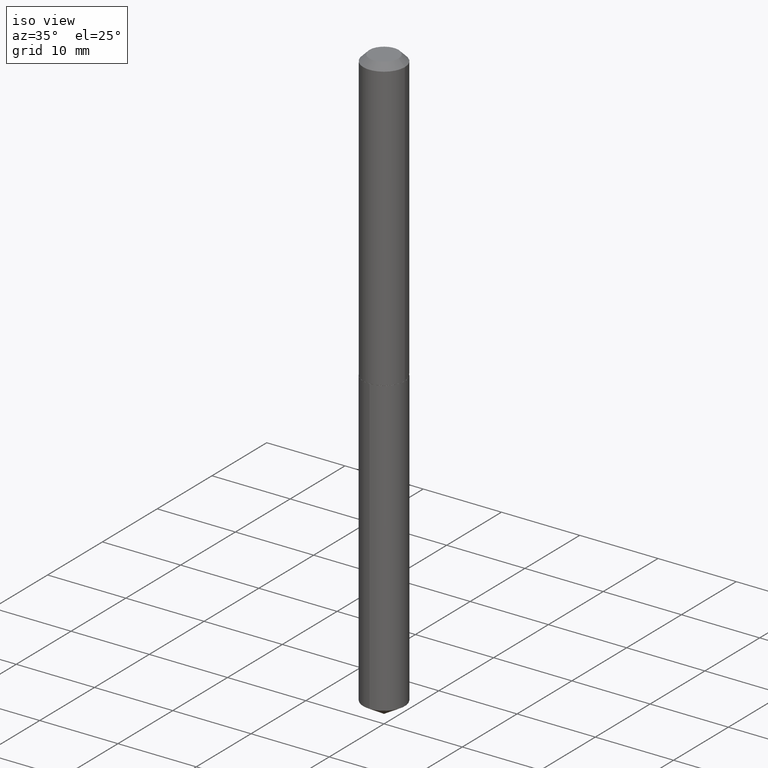
[diagram: clean part render]
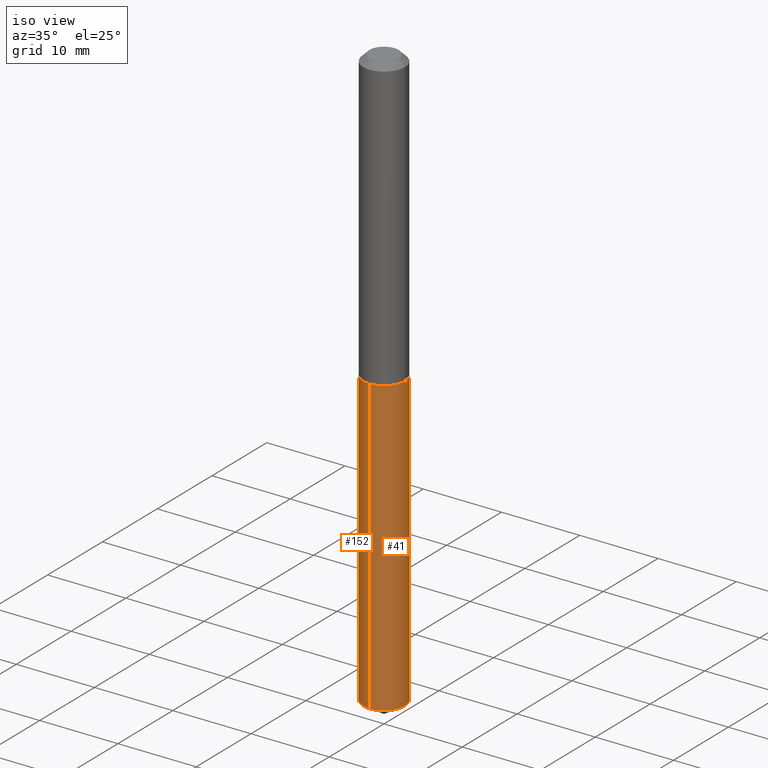
[diagram: same view with one multi-face feature highlighted, each face labeled with its STEP entity id]
A machine part, iso view. The highlighted faces form ONE feature: a constant-radius fillet chain: 2 tangent blend faces with common blend radius 2.6543 mm. The faces share edges in the B-rep.
Their STEP definitions:
[1] entity #41 (Cylinder):
#1 = CARTESIAN_POINT ( 'NONE',  ( 3.567938988224114792E-29, -5.094071273372150151E-15, -1.459000000000000297 ) ) ;
#5 = AXIS2_PLACEMENT_3D ( 'NONE', #40, #342, #97 ) ;
#17 = CARTESIAN_POINT ( 'NONE',  ( 3.567938988224114792E-29, -5.094071273372150151E-15, -1.459000000000000297 ) ) ;
#37 = AXIS2_PLACEMENT_3D ( 'NONE', #17, #116, #85 ) ;
#40 = CARTESIAN_POINT ( 'NONE',  ( 7.177397751572739020E-29, -1.026303006933405214E-14, -2.937210065311621321 ) ) ;
#41 = ADVANCED_FACE ( 'NONE', ( #361 ), #333, .T. ) ;
#50 = ORIENTED_EDGE ( 'NONE', *, *, #123, .F. ) ;
#57 = LINE ( 'NONE', #336, #212 ) ;
#60 = EDGE_CURVE ( 'NONE', #256, #228, #218, .T. ) ;
#84 = DIRECTION ( 'NONE',  ( -2.441776610814590740E-29, 3.496768772760476787E-15, 1.000000000000000000 ) ) ;
#85 = DIRECTION ( 'NONE',  ( -6.982962677686266711E-15, -1.000000000000000000, 2.614208606377285850E-15 ) ) ;
#97 = DIRECTION ( 'NONE',  ( -6.982962677686266711E-15, -1.000000000000000000, 5.228417212754571700E-15 ) ) ;
#111 = ORIENTED_EDGE ( 'NONE', *, *, #60, .F. ) ;
#113 = DIRECTION ( 'NONE',  ( -6.982962677686266711E-15, -1.000000000000000000, 2.614208606377285850E-15 ) ) ;
#116 = DIRECTION ( 'NONE',  ( -2.441776610814590740E-29, 3.496768772760477182E-15, 1.000000000000000000 ) ) ;
#123 = EDGE_CURVE ( 'NONE', #136, #256, #57, .T. ) ;
#130 = CARTESIAN_POINT ( 'NONE',  ( 7.425171588693764498E-16, 0.1044999999999897400, -2.937210065311621765 ) ) ;
#136 = VERTEX_POINT ( 'NONE', #177 ) ;
#153 = CARTESIAN_POINT ( 'NONE',  ( 7.425171588693401622E-16, 0.1044999999999949025, -1.459000000000000519 ) ) ;
#157 = CIRCLE ( 'NONE', #5, 0.1044999999999999818 ) ;
#173 = DIRECTION ( 'NONE',  ( -2.441776610814590740E-29, 3.496768772760477182E-15, 1.000000000000000000 ) ) ;
#177 = CARTESIAN_POINT ( 'NONE',  ( -7.297195998181429350E-16, -0.1045000000000102514, -2.937210065311620433 ) ) ;
#192 = ORIENTED_EDGE ( 'NONE', *, *, #322, .T. ) ;
#205 = CARTESIAN_POINT ( 'NONE',  ( -7.297195998181791240E-16, -0.1045000000000050749, -1.458999999999999853 ) ) ;
#212 = VECTOR ( 'NONE', #84, 39.37007874015748143 ) ;
#218 = CIRCLE ( 'NONE', #305, 0.1044999999999999818 ) ;
#225 = VECTOR ( 'NONE', #279, 39.37007874015748143 ) ;
#228 = VERTEX_POINT ( 'NONE', #360 ) ;
#231 = ORIENTED_EDGE ( 'NONE', *, *, #370, .T. ) ;
#256 = VERTEX_POINT ( 'NONE', #205 ) ;
#279 = DIRECTION ( 'NONE',  ( -2.441776610814590740E-29, 3.496768772760476787E-15, 1.000000000000000000 ) ) ;
#305 = AXIS2_PLACEMENT_3D ( 'NONE', #1, #173, #113 ) ;
#309 = LINE ( 'NONE', #153, #225 ) ;
#322 = EDGE_CURVE ( 'NONE', #136, #387, #157, .T. ) ;
#333 = CYLINDRICAL_SURFACE ( 'NONE', #37, 0.1044999999999999818 ) ;
#336 = CARTESIAN_POINT ( 'NONE',  ( -7.297195998181791240E-16, -0.1045000000000050749, -1.458999999999999853 ) ) ;
#342 = DIRECTION ( 'NONE',  ( -2.441776610814590740E-29, 3.496768772760477182E-15, 1.000000000000000000 ) ) ;
#360 = CARTESIAN_POINT ( 'NONE',  ( 7.425171588693765484E-16, 0.1044999999999949025, -1.459000000000000519 ) ) ;
#361 = FACE_OUTER_BOUND ( 'NONE', #375, .T. ) ;
#370 = EDGE_CURVE ( 'NONE', #387, #228, #309, .T. ) ;
#375 = EDGE_LOOP ( 'NONE', ( #192, #231, #111, #50 ) ) ;
#387 = VERTEX_POINT ( 'NONE', #130 ) ;
[2] entity #152 (Cylinder):
#14 = EDGE_LOOP ( 'NONE', ( #206, #106, #159, #32 ) ) ;
#32 = ORIENTED_EDGE ( 'NONE', *, *, #34, .F. ) ;
#34 = EDGE_CURVE ( 'NONE', #228, #256, #178, .T. ) ;
#44 = AXIS2_PLACEMENT_3D ( 'NONE', #200, #242, #366 ) ;
#55 = FACE_OUTER_BOUND ( 'NONE', #14, .T. ) ;
#57 = LINE ( 'NONE', #336, #212 ) ;
#84 = DIRECTION ( 'NONE',  ( -2.441776610814590740E-29, 3.496768772760476787E-15, 1.000000000000000000 ) ) ;
#92 = DIRECTION ( 'NONE',  ( -6.982962677686266711E-15, -1.000000000000000000, 5.228417212754571700E-15 ) ) ;
#105 = AXIS2_PLACEMENT_3D ( 'NONE', #241, #213, #272 ) ;
#106 = ORIENTED_EDGE ( 'NONE', *, *, #314, .T. ) ;
#122 = CYLINDRICAL_SURFACE ( 'NONE', #105, 0.1044999999999999818 ) ;
#123 = EDGE_CURVE ( 'NONE', #136, #256, #57, .T. ) ;
#130 = CARTESIAN_POINT ( 'NONE',  ( 7.425171588693764498E-16, 0.1044999999999897400, -2.937210065311621765 ) ) ;
#134 = CIRCLE ( 'NONE', #250, 0.1044999999999999818 ) ;
#136 = VERTEX_POINT ( 'NONE', #177 ) ;
#152 = ADVANCED_FACE ( 'NONE', ( #55 ), #122, .T. ) ;
#153 = CARTESIAN_POINT ( 'NONE',  ( 7.425171588693401622E-16, 0.1044999999999949025, -1.459000000000000519 ) ) ;
#159 = ORIENTED_EDGE ( 'NONE', *, *, #123, .T. ) ;
#177 = CARTESIAN_POINT ( 'NONE',  ( -7.297195998181429350E-16, -0.1045000000000102514, -2.937210065311620433 ) ) ;
#178 = CIRCLE ( 'NONE', #44, 0.1044999999999999818 ) ;
#200 = CARTESIAN_POINT ( 'NONE',  ( 3.567938988224114792E-29, -5.094071273372150151E-15, -1.459000000000000297 ) ) ;
#205 = CARTESIAN_POINT ( 'NONE',  ( -7.297195998181791240E-16, -0.1045000000000050749, -1.458999999999999853 ) ) ;
#206 = ORIENTED_EDGE ( 'NONE', *, *, #370, .F. ) ;
#212 = VECTOR ( 'NONE', #84, 39.37007874015748143 ) ;
#213 = DIRECTION ( 'NONE',  ( -2.441776610814590740E-29, 3.496768772760477182E-15, 1.000000000000000000 ) ) ;
#225 = VECTOR ( 'NONE', #279, 39.37007874015748143 ) ;
#228 = VERTEX_POINT ( 'NONE', #360 ) ;
#241 = CARTESIAN_POINT ( 'NONE',  ( 3.567938988224114792E-29, -5.094071273372150151E-15, -1.459000000000000297 ) ) ;
#242 = DIRECTION ( 'NONE',  ( -2.441776610814590740E-29, 3.496768772760477182E-15, 1.000000000000000000 ) ) ;
#250 = AXIS2_PLACEMENT_3D ( 'NONE', #349, #345, #92 ) ;
#256 = VERTEX_POINT ( 'NONE', #205 ) ;
#272 = DIRECTION ( 'NONE',  ( -6.982962677686266711E-15, -1.000000000000000000, 2.614208606377285850E-15 ) ) ;
#279 = DIRECTION ( 'NONE',  ( -2.441776610814590740E-29, 3.496768772760476787E-15, 1.000000000000000000 ) ) ;
#309 = LINE ( 'NONE', #153, #225 ) ;
#314 = EDGE_CURVE ( 'NONE', #387, #136, #134, .T. ) ;
#336 = CARTESIAN_POINT ( 'NONE',  ( -7.297195998181791240E-16, -0.1045000000000050749, -1.458999999999999853 ) ) ;
#345 = DIRECTION ( 'NONE',  ( -2.441776610814590740E-29, 3.496768772760477182E-15, 1.000000000000000000 ) ) ;
#349 = CARTESIAN_POINT ( 'NONE',  ( 7.177397751572739020E-29, -1.026303006933405214E-14, -2.937210065311621321 ) ) ;
#360 = CARTESIAN_POINT ( 'NONE',  ( 7.425171588693765484E-16, 0.1044999999999949025, -1.459000000000000519 ) ) ;
#366 = DIRECTION ( 'NONE',  ( -6.982962677686266711E-15, -1.000000000000000000, 2.614208606377285850E-15 ) ) ;
#370 = EDGE_CURVE ( 'NONE', #387, #228, #309, .T. ) ;
#387 = VERTEX_POINT ( 'NONE', #130 ) ;